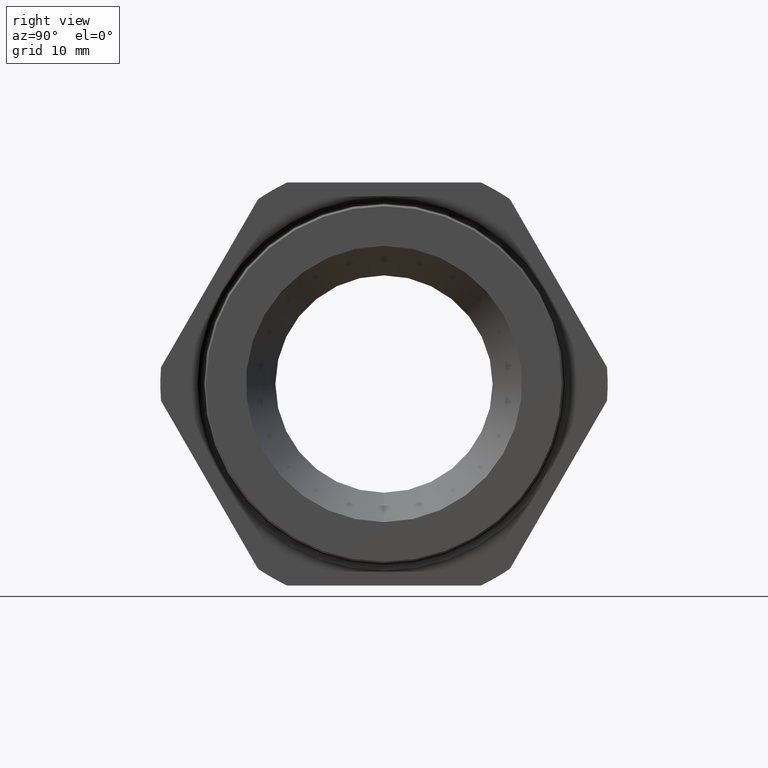
[diagram: clean part render]
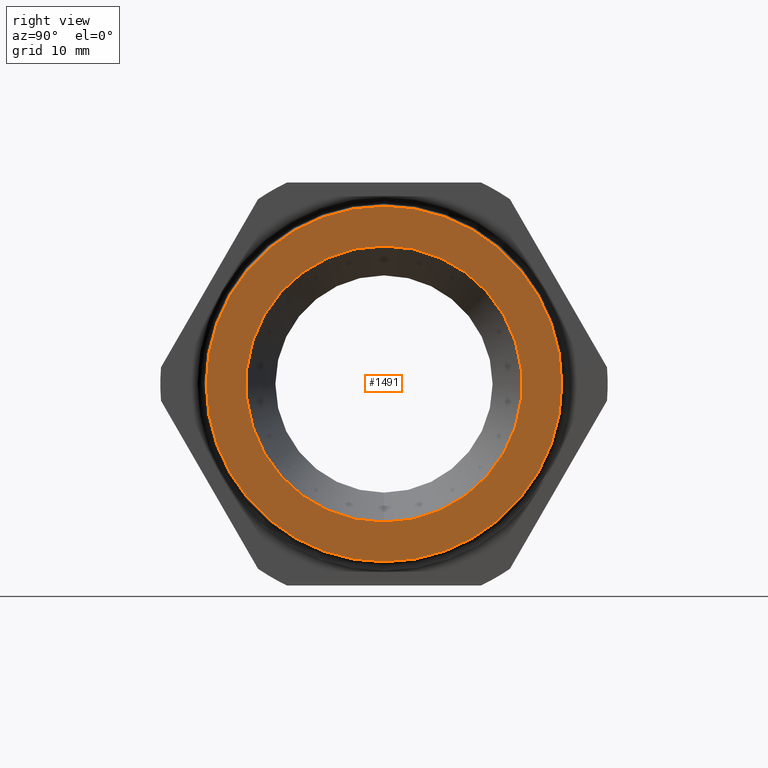
[diagram: same view with one face highlighted and labeled with its STEP entity id]
A machine part, right view. The second image highlights one B-rep face of the part: STEP entity #1491.
In plain terms, the highlighted planar face has unit normal (1, 0, 0).
Its self-contained STEP definition (entity closure, byte-faithful):
#49 = VERTEX_POINT ( 'NONE', #1635 ) ;
#55 = VERTEX_POINT ( 'NONE', #1673 ) ;
#56 = EDGE_CURVE ( 'NONE', #55, #49, #1672, .T. ) ;
#123 = VERTEX_POINT ( 'NONE', #1798 ) ;
#129 = VERTEX_POINT ( 'NONE', #1791 ) ;
#130 = EDGE_CURVE ( 'NONE', #123, #129, #1790, .T. ) ;
#429 = EDGE_CURVE ( 'NONE', #129, #123, #2394, .T. ) ;
#430 = ORIENTED_EDGE ( 'NONE', *, *, #130, .F. ) ;
#1041 = ORIENTED_EDGE ( 'NONE', *, *, #429, .F. ) ;
#1454 = ORIENTED_EDGE ( 'NONE', *, *, #56, .T. ) ;
#1456 = ORIENTED_EDGE ( 'NONE', *, *, #1492, .T. ) ;
#1486 = EDGE_LOOP ( 'NONE', ( #1456, #1454 ) ) ;
#1491 = ADVANCED_FACE ( 'NONE', ( #4177, #4176 ), #4175, .T. ) ;
#1492 = EDGE_CURVE ( 'NONE', #49, #55, #4234, .T. ) ;
#1494 = EDGE_LOOP ( 'NONE', ( #1041, #430 ) ) ;
#1635 = CARTESIAN_POINT ( 'NONE',  ( 0.3999999999999999700, 0.0000000000000000000, 1.129426223824634400 ) ) ;
#1668 = DIRECTION ( 'NONE',  ( 0.0000000000000000000, 0.0000000000000000000, -1.000000000000000000 ) ) ;
#1669 = DIRECTION ( 'NONE',  ( 1.000000000000000000, 0.0000000000000000000, 0.0000000000000000000 ) ) ;
#1670 = CARTESIAN_POINT ( 'NONE',  ( 0.3999999999999999700, 0.0000000000000000000, 0.0000000000000000000 ) ) ;
#1671 = AXIS2_PLACEMENT_3D ( 'NONE', #1670, #1669, #1668 ) ;
#1672 = CIRCLE ( 'NONE', #1671, 1.129426223824634400 ) ;
#1673 = CARTESIAN_POINT ( 'NONE',  ( 0.3999999999999999700, 1.384007961136128000E-016, -1.129426223824634400 ) ) ;
#1786 = DIRECTION ( 'NONE',  ( 0.0000000000000000000, 0.0000000000000000000, -1.000000000000000000 ) ) ;
#1787 = DIRECTION ( 'NONE',  ( 1.000000000000000000, 0.0000000000000000000, 0.0000000000000000000 ) ) ;
#1788 = CARTESIAN_POINT ( 'NONE',  ( 0.4000000000000000800, 0.0000000000000000000, 0.0000000000000000000 ) ) ;
#1789 = AXIS2_PLACEMENT_3D ( 'NONE', #1788, #1787, #1786 ) ;
#1790 = CIRCLE ( 'NONE', #1789, 0.8774999999999999500 ) ;
#1791 = CARTESIAN_POINT ( 'NONE',  ( 0.4000000000000000800, 0.0000000000000000000, -0.8774999999999999500 ) ) ;
#1798 = CARTESIAN_POINT ( 'NONE',  ( 0.4000000000000000800, 1.074627566251802300E-016, 0.8774999999999999500 ) ) ;
#2391 = DIRECTION ( 'NONE',  ( 0.0000000000000000000, 0.0000000000000000000, -1.000000000000000000 ) ) ;
#2392 = DIRECTION ( 'NONE',  ( 1.000000000000000000, 0.0000000000000000000, 0.0000000000000000000 ) ) ;
#2393 = AXIS2_PLACEMENT_3D ( 'NONE', #2400, #2392, #2391 ) ;
#2394 = CIRCLE ( 'NONE', #2393, 0.8774999999999999500 ) ;
#2400 = CARTESIAN_POINT ( 'NONE',  ( 0.4000000000000000800, 0.0000000000000000000, 0.0000000000000000000 ) ) ;
#4175 = PLANE ( 'NONE',  #4238 ) ;
#4176 = FACE_BOUND ( 'NONE', #1494, .T. ) ;
#4177 = FACE_OUTER_BOUND ( 'NONE', #1486, .T. ) ;
#4231 = DIRECTION ( 'NONE',  ( 0.0000000000000000000, 0.0000000000000000000, -1.000000000000000000 ) ) ;
#4232 = DIRECTION ( 'NONE',  ( 1.000000000000000000, 0.0000000000000000000, 0.0000000000000000000 ) ) ;
#4233 = AXIS2_PLACEMENT_3D ( 'NONE', #4239, #4232, #4231 ) ;
#4234 = CIRCLE ( 'NONE', #4233, 1.129426223824634400 ) ;
#4235 = DIRECTION ( 'NONE',  ( 0.0000000000000000000, 0.0000000000000000000, -1.000000000000000000 ) ) ;
#4236 = DIRECTION ( 'NONE',  ( 1.000000000000000000, 0.0000000000000000000, 0.0000000000000000000 ) ) ;
#4237 = CARTESIAN_POINT ( 'NONE',  ( 0.4000000000000000200, 0.8774999999999999500, 0.0000000000000000000 ) ) ;
#4238 = AXIS2_PLACEMENT_3D ( 'NONE', #4237, #4236, #4235 ) ;
#4239 = CARTESIAN_POINT ( 'NONE',  ( 0.3999999999999999700, 0.0000000000000000000, 0.0000000000000000000 ) ) ;